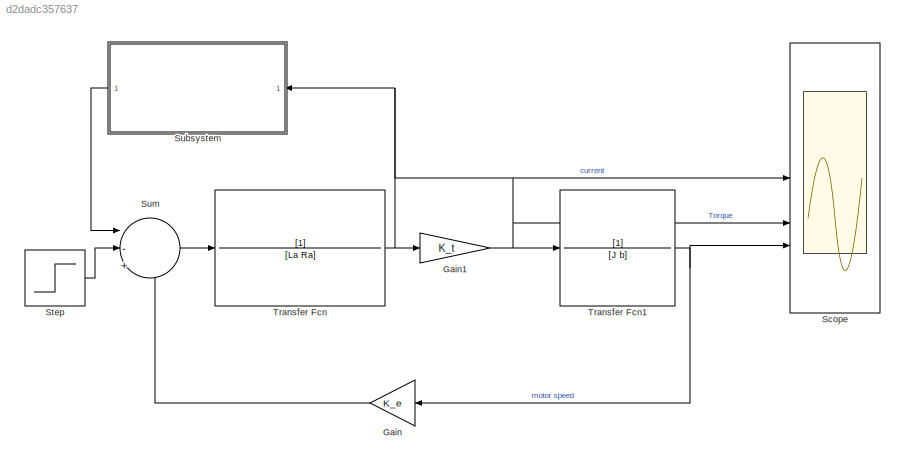
MODEL slx_d2dadc357637
KIND model
CONFIG AbsTol = auto
CONFIG EnableMultiTasking = off
CONFIG FixedStep = auto
CONFIG MaxStep = auto
CONFIG MinStep = auto
CONFIG RelTol = 1e-3
CONFIG SampleTimeConstraint = Unconstrained
CONFIG SolverName = VariableStepAuto
CONFIG StartTime = 0.0
CONFIG StopTime = 40
BLOCK [Gain] Gain
  Gain = K_e
  NameLocation = top
BLOCK [Gain] Gain1
  Gain = K_t
BLOCK [Scope] Scope
  Floating = off
  NumInputPorts = 3
  ScopeSpecificationString = Simulink.scopes.TimeScopeBlockCfg('CurrentConfiguration', extmgr.ConfigurationSet(extmgr.Configuration('Core','General UI',true,'FigureColor',[1 1 1]),extmgr.Configuration('Core','Source UI',true),extmgr.Configuration('Sources','WiredSimulink',true),extmgr.Configuration('Visuals','Time Domain',true,'SerializedDisplays',{struct('MinYLimReal','-10','MaxYLimReal','20','YLabelReal','','MinYLimMag','0....<+3038ch>
BLOCK [Step] Step
  After = 60
  SampleTime = 0
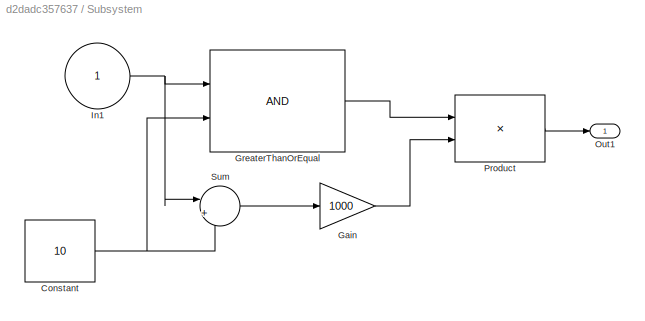
BLOCK [SubSystem] Subsystem
  NameLocation = top
BLOCK [Constant] Subsystem/Constant
  Value = 10
BLOCK [Gain] Subsystem/Gain
  Gain = 1000
BLOCK [RelationalOperator] Subsystem/GreaterThanOrEqual
  InputSameDT = off
  OutDataTypeStr = boolean
  RndMeth = Simplest
BLOCK [Inport] Subsystem/In1
BLOCK [Outport] Subsystem/Out1
BLOCK [Product] Subsystem/Product
BLOCK [Sum] Subsystem/Sum
  Inputs = |+-
BLOCK [Sum] Sum
  Inputs = |-+-
BLOCK [TransferFcn] Transfer Fcn
  Denominator = [La Ra]
BLOCK [TransferFcn] Transfer Fcn1
  Denominator = [J b]
NET Gain1:1 -> Scope:2, Transfer Fcn1:1
LINE Gain:1 -> Sum:3
LINE Step:1 -> Sum:2
NET Subsystem/Constant:1 -> Subsystem/GreaterThanOrEqual:2, Subsystem/Sum:2
LINE Subsystem/Gain:1 -> Subsystem/Product:2
LINE Subsystem/GreaterThanOrEqual:1 -> Subsystem/Product:1
NET Subsystem/In1:1 -> Subsystem/GreaterThanOrEqual:1, Subsystem/Sum:1
LINE Subsystem/Product:1 -> Subsystem/Out1:1
LINE Subsystem/Sum:1 -> Subsystem/Gain:1
LINE Subsystem:1 -> Sum:1
LINE Sum:1 -> Transfer Fcn:1
NET Transfer Fcn1:1 -> Gain:1, Scope:3
NET Transfer Fcn:1 -> Gain1:1, Scope:1, Subsystem:1
note: NET lines group one-source signal fan-out (src -> all destinations, sorted); 1:1 wires keep LINE
